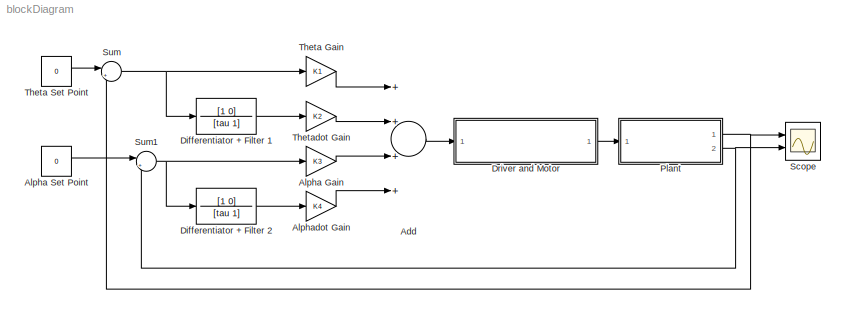
MODEL blockDiagram
KIND model
BLOCK [Sum] Add
  InputSameDT = off
  Inputs = ++++
  OutDataTypeStr = Inherit: Inherit via internal rule
  Ports = [4, 1]
  SID = 5
  SaturateOnIntegerOverflow = off
BLOCK [Gain] Alpha Gain
  Gain = K3
  OutDataTypeStr = Inherit: Inherit via internal rule
  ParamDataTypeStr = Inherit: Inherit via internal rule
  SID = 3
  SaturateOnIntegerOverflow = off
BLOCK [Constant] Alpha Set Point
  SID = 18
  Value = 0
BLOCK [Gain] Alphadot Gain
  Gain = K4
  OutDataTypeStr = Inherit: Inherit via internal rule
  ParamDataTypeStr = Inherit: Inherit via internal rule
  SID = 4
  SaturateOnIntegerOverflow = off
BLOCK [TransferFcn] Differentiator + Filter 1
  Denominator = [tau 1]
  Numerator = [1 0]
  SID = 14
BLOCK [TransferFcn] Differentiator + Filter 2
  Denominator = [tau 1]
  Numerator = [1 0]
  SID = 15
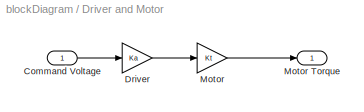
BLOCK [SubSystem] Driver and Motor
  FunctionWithSeparateData = off
  MaskHideContents = off
  MinAlgLoopOccurrences = off
  Opaque = off
  Ports = [1, 1]
  PropExecContextOutsideSubsystem = off
  RTWSystemCode = Auto
  RequestExecContextInheritance = off
  SID = 10
BLOCK [Inport] Driver and Motor/Command Voltage
  IconDisplay = Port number
  SID = 11
BLOCK [Gain] Driver and Motor/Driver
  Gain = Ka
  OutDataTypeStr = Inherit: Inherit via internal rule
  ParamDataTypeStr = Inherit: Inherit via internal rule
  SID = 20
  SaturateOnIntegerOverflow = off
BLOCK [Gain] Driver and Motor/Motor 
  Gain = Kt
  OutDataTypeStr = Inherit: Inherit via internal rule
  ParamDataTypeStr = Inherit: Inherit via internal rule
  SID = 21
  SaturateOnIntegerOverflow = off
BLOCK [Outport] Driver and Motor/Motor Torque
  IconDisplay = Port number
  SID = 12
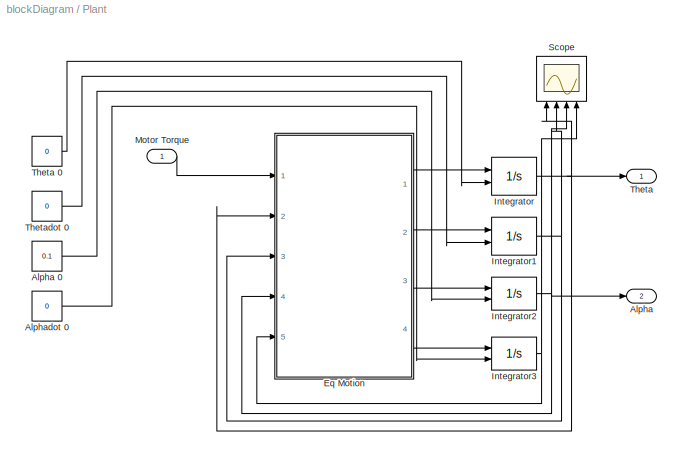
BLOCK [SubSystem] Plant
  FunctionWithSeparateData = off
  MaskHideContents = off
  MinAlgLoopOccurrences = off
  Opaque = off
  Ports = [1, 2]
  PropExecContextOutsideSubsystem = off
  RTWSystemCode = Auto
  RequestExecContextInheritance = off
  SID = 22
BLOCK [Outport] Plant/Alpha
  IconDisplay = Port number
  Port = 2
  SID = 27
BLOCK [Constant] Plant/Alpha 0
  SID = 37
  Value = 0.1
BLOCK [Constant] Plant/Alphadot 0
  SID = 38
  Value = 0
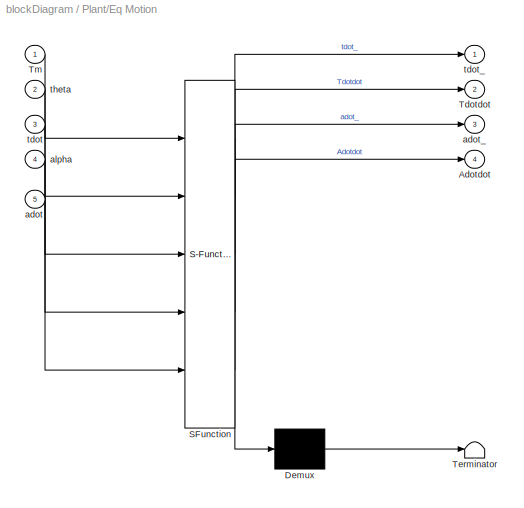
BLOCK [SubSystem] Plant/Eq Motion
  ErrorFcn = Stateflow.Translate.translate
  FunctionWithSeparateData = off
  MaskDescription = Embedded MATLAB block
  MaskDisplay = bgColor = Simulink.Root.ColorString2Rgb(get_param(gcbh, 'BackgroundColor')); image(imread('private/eml_membrane_16.png','png','BackgroundColor',bgColor(1:3)),'center'); disp([10 10 'eqMotionLinear']);
  MaskHideContents = off
  MaskIconFrame = on
  MaskIconOpaque = off
  MaskIconRotate = none
  MaskIconUnits = normalized
  MaskPortRotate = default
  MaskSelfModifiable = on
  MaskType = Stateflow
  MinAlgLoopOccurrences = off
  Opaque = off
  PermitHierarchicalResolution = ExplicitOnly
  Ports = [5, 4]
  PropExecContextOutsideSubsystem = off
  RTWSystemCode = Auto
  RequestExecContextInheritance = off
  SID = 30
  TreatAsAtomicUnit = on
BLOCK [Demux] Plant/Eq Motion/ Demux 
  Outputs = 1
  Ports = [1, 1]
  SID = 30::15
BLOCK [S-Function] Plant/Eq Motion/ SFunction 
  EnableBusSupport = on
  FunctionName = sf_sfun
  Parameters = I1zt,Ix2,Ixz2,Iy2,Iz2,ba,bt,g,l1,l2c,m2
  PortCounts = [5 5]
  Ports = [5, 5]
  SID = 30::14
  Tag = Stateflow S-Function blockDiagram 2
BLOCK [Terminator] Plant/Eq Motion/ Terminator 
  SID = 30::17
BLOCK [Outport] Plant/Eq Motion/Adotdot
  IconDisplay = Port number
  Port = 4
  SID = 30::35
BLOCK [Outport] Plant/Eq Motion/Tdotdot
  IconDisplay = Port number
  Port = 2
  SID = 30::33
BLOCK [Inport] Plant/Eq Motion/Tm
  IconDisplay = Port number
  SID = 30::1
BLOCK [Inport] Plant/Eq Motion/adot
  IconDisplay = Port number
  Port = 5
  SID = 30::21
BLOCK [Outport] Plant/Eq Motion/adot_
  IconDisplay = Port number
  Port = 3
  SID = 30::34
BLOCK [Inport] Plant/Eq Motion/alpha
  IconDisplay = Port number
  Port = 4
  SID = 30::20
BLOCK [Inport] Plant/Eq Motion/tdot
  IconDisplay = Port number
  Port = 3
  SID = 30::19
BLOCK [Outport] Plant/Eq Motion/tdot_
  IconDisplay = Port number
  SID = 30::5
BLOCK [Inport] Plant/Eq Motion/theta
  IconDisplay = Port number
  Port = 2
  SID = 30::18
BLOCK [Integrator] Plant/Integrator
  InitialConditionSource = external
  Ports = [2, 1]
  SID = 31
BLOCK [Integrator] Plant/Integrator1
  InitialConditionSource = external
  Ports = [2, 1]
  SID = 32
BLOCK [Integrator] Plant/Integrator2
  InitialConditionSource = external
  Ports = [2, 1]
  SID = 33
BLOCK [Integrator] Plant/Integrator3
  InitialConditionSource = external
  Ports = [2, 1]
  SID = 34
BLOCK [Inport] Plant/Motor Torque
  IconDisplay = Port number
  SID = 23
BLOCK [Scope] Plant/Scope
  DataFormat = StructureWithTime
  Floating = off
  LimitDataPoints = off
  NumInputPorts = 4
  Ports = [4]
  SID = 29
  SampleTime = 0
  SaveName = LinearSystemResponse
  SaveToWorkspace = on
  YMax = 5~5~5~5
  YMin = -5~-5~-5~-5
BLOCK [Outport] Plant/Theta
  IconDisplay = Port number
  SID = 26
BLOCK [Constant] Plant/Theta 0
  SID = 35
  Value = 0
BLOCK [Constant] Plant/Thetadot 0
  SID = 36
  Value = 0
BLOCK [Scope] Scope
  DataFormat = StructureWithTime
  Floating = off
  NumInputPorts = 2
  Ports = [2]
  SID = 28
  SampleTime = 0
  YMax = 5~5
  YMin = -5~-5
BLOCK [Sum] Sum
  IconShape = round
  InputSameDT = off
  Inputs = |+-
  OutDataTypeStr = Inherit: Inherit via internal rule
  Ports = [2, 1]
  SID = 16
  SaturateOnIntegerOverflow = off
BLOCK [Sum] Sum1
  IconShape = round
  InputSameDT = off
  Inputs = |+-
  OutDataTypeStr = Inherit: Inherit via internal rule
  Ports = [2, 1]
  SID = 19
  SaturateOnIntegerOverflow = off
BLOCK [Gain] Theta Gain
  Gain = K1
  OutDataTypeStr = Inherit: Inherit via internal rule
  ParamDataTypeStr = Inherit: Inherit via internal rule
  SID = 1
  SaturateOnIntegerOverflow = off
BLOCK [Constant] Theta Set Point
  SID = 17
  Value = 0
BLOCK [Gain] Thetadot Gain
  Gain = K2
  OutDataTypeStr = Inherit: Inherit via internal rule
  ParamDataTypeStr = Inherit: Inherit via internal rule
  SID = 2
  SaturateOnIntegerOverflow = off
LINE Add:1 -> Driver and Motor:1
LINE Alpha Gain:1 -> Add:3
LINE Alpha Set Point:1 -> Sum1:1
LINE Alphadot Gain:1 -> Add:4
LINE Differentiator + Filter 1:1 -> Thetadot Gain:1
LINE Differentiator + Filter 2:1 -> Alphadot Gain:1
LINE Driver and Motor/Command Voltage:1 -> Driver and Motor/Driver:1
LINE Driver and Motor/Driver:1 -> Driver and Motor/Motor :1
LINE Driver and Motor/Motor :1 -> Driver and Motor/Motor Torque:1
LINE Driver and Motor:1 -> Plant:1
LINE Plant/Alpha 0:1 -> Plant/Integrator2:2
LINE Plant/Alphadot 0:1 -> Plant/Integrator3:2
LINE Plant/Eq Motion/ Demux :1 -> Plant/Eq Motion/ Terminator :1
LINE Plant/Eq Motion/ SFunction :1 -> Plant/Eq Motion/ Demux :1
LINE Plant/Eq Motion/ SFunction :2 -> Plant/Eq Motion/tdot_:1
LINE Plant/Eq Motion/ SFunction :3 -> Plant/Eq Motion/Tdotdot:1
LINE Plant/Eq Motion/ SFunction :4 -> Plant/Eq Motion/adot_:1
LINE Plant/Eq Motion/ SFunction :5 -> Plant/Eq Motion/Adotdot:1
LINE Plant/Eq Motion/Tm:1 -> Plant/Eq Motion/ SFunction :1
LINE Plant/Eq Motion/adot:1 -> Plant/Eq Motion/ SFunction :5
LINE Plant/Eq Motion/alpha:1 -> Plant/Eq Motion/ SFunction :4
LINE Plant/Eq Motion/tdot:1 -> Plant/Eq Motion/ SFunction :3
LINE Plant/Eq Motion/theta:1 -> Plant/Eq Motion/ SFunction :2
LINE Plant/Eq Motion:1 -> Plant/Integrator:1
LINE Plant/Eq Motion:2 -> Plant/Integrator1:1
LINE Plant/Eq Motion:3 -> Plant/Integrator2:1
LINE Plant/Eq Motion:4 -> Plant/Integrator3:1
NET Plant/Integrator1:1 -> Plant/Eq Motion:3, Plant/Scope:2
NET Plant/Integrator2:1 -> Plant/Alpha:1, Plant/Eq Motion:4, Plant/Scope:3
NET Plant/Integrator3:1 -> Plant/Eq Motion:5, Plant/Scope:4
NET Plant/Integrator:1 -> Plant/Eq Motion:2, Plant/Scope:1, Plant/Theta:1
LINE Plant/Motor Torque:1 -> Plant/Eq Motion:1
LINE Plant/Theta 0:1 -> Plant/Integrator:2
LINE Plant/Thetadot 0:1 -> Plant/Integrator1:2
NET Plant:1 -> Scope:1, Sum:2
NET Plant:2 -> Scope:2, Sum1:2
NET Sum1:1 -> Alpha Gain:1, Differentiator + Filter 2:1
NET Sum:1 -> Differentiator + Filter 1:1, Theta Gain:1
LINE Theta Gain:1 -> Add:1
LINE Theta Set Point:1 -> Sum:1
LINE Thetadot Gain:1 -> Add:2
note: NET lines group one-source signal fan-out (src -> all destinations, sorted); 1:1 wires keep LINE
CHART Plant/Eq Motion states=1 transitions=1
  STATE_LABEL 'eML_blk_kernel()'
